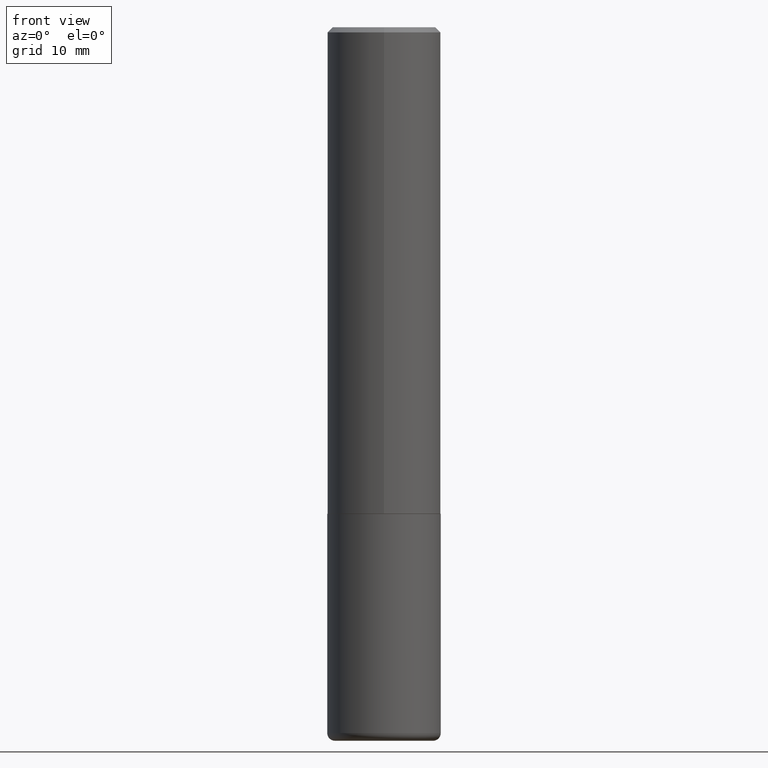
[diagram: clean part render]
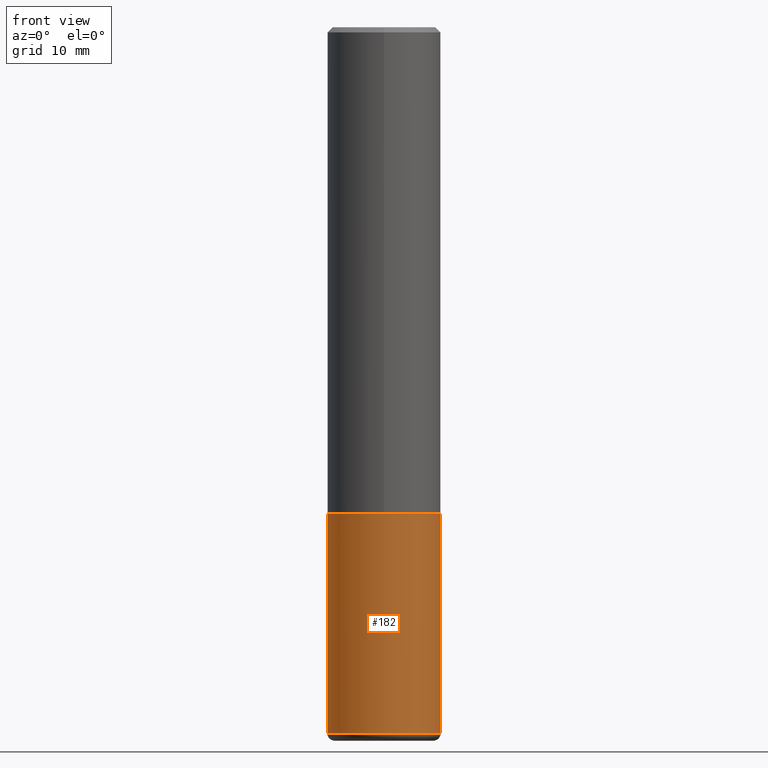
[diagram: same view with one face highlighted and labeled with its STEP entity id]
A machine part, front view. The second image highlights one B-rep face of the part: STEP entity #182.
In plain terms, the highlighted cylindrical surface (partial cylindrical patch) has radius 5.5563 mm, axis along (-0, 0, 1).
Its self-contained STEP definition (entity closure, byte-faithful):
#5 = EDGE_CURVE ( 'NONE', #14, #292, #167, .T. ) ;
#8 = EDGE_CURVE ( 'NONE', #292, #326, #172, .T. ) ;
#13 = FACE_OUTER_BOUND ( 'NONE', #35, .T. ) ;
#14 = VERTEX_POINT ( 'NONE', #371 ) ;
#16 = CARTESIAN_POINT ( 'NONE',  ( 0.000000000000000000, 0.000000000000000000, 0.000000000000000000 ) ) ;
#22 = DIRECTION ( 'NONE',  ( -2.445468806185136597E-29, 3.491481338843145583E-15, 1.000000000000000000 ) ) ;
#30 = AXIS2_PLACEMENT_3D ( 'NONE', #16, #320, #42 ) ;
#33 = CARTESIAN_POINT ( 'NONE',  ( 4.585254011597131119E-29, -6.546527510330898707E-15, -1.875000000000000000 ) ) ;
#35 = EDGE_LOOP ( 'NONE', ( #288, #365, #98, #108 ) ) ;
#38 = CARTESIAN_POINT ( 'NONE',  ( -0.2187500000000000000, -6.467366141516908442E-15, -1.875000000000000000 ) ) ;
#42 = DIRECTION ( 'NONE',  ( 1.000000000000000000, -6.982962677686266711E-15, 4.876176775795935232E-29 ) ) ;
#46 = CYLINDRICAL_SURFACE ( 'NONE', #30, 0.2187500000000000278 ) ;
#73 = CARTESIAN_POINT ( 'NONE',  ( 0.2187500000000000000, -8.074050596074770339E-15, -1.875000000000000000 ) ) ;
#85 = DIRECTION ( 'NONE',  ( 1.000000000000000000, -6.982962677686271444E-15, 0.000000000000000000 ) ) ;
#95 = AXIS2_PLACEMENT_3D ( 'NONE', #33, #327, #291 ) ;
#98 = ORIENTED_EDGE ( 'NONE', *, *, #8, .T. ) ;
#108 = ORIENTED_EDGE ( 'NONE', *, *, #330, .F. ) ;
#117 = CARTESIAN_POINT ( 'NONE',  ( 0.2187500000000000278, -1.527523085743871040E-15, 1.066663669705361025E-29 ) ) ;
#122 = AXIS2_PLACEMENT_3D ( 'NONE', #406, #22, #85 ) ;
#167 = CIRCLE ( 'NONE', #122, 0.2187500000000000278 ) ;
#171 = CARTESIAN_POINT ( 'NONE',  ( -0.2187500000000000278, 1.554312234475219354E-15, -1.076017050993260762E-29 ) ) ;
#172 = LINE ( 'NONE', #117, #201 ) ;
#182 = ADVANCED_FACE ( 'NONE', ( #13 ), #46, .T. ) ;
#197 = VERTEX_POINT ( 'NONE', #38 ) ;
#201 = VECTOR ( 'NONE', #239, 39.37007874015748143 ) ;
#208 = LINE ( 'NONE', #171, #305 ) ;
#228 = CARTESIAN_POINT ( 'NONE',  ( 0.2187499999999998890, -1.102435232739722812E-14, -2.719999999999999751 ) ) ;
#238 = DIRECTION ( 'NONE',  ( -2.445468806185136877E-29, 3.491481338843145188E-15, 1.000000000000000000 ) ) ;
#239 = DIRECTION ( 'NONE',  ( -2.445468806185136877E-29, 3.491481338843145188E-15, 1.000000000000000000 ) ) ;
#259 = EDGE_CURVE ( 'NONE', #14, #197, #208, .T. ) ;
#286 = CIRCLE ( 'NONE', #95, 0.2187500000000000000 ) ;
#288 = ORIENTED_EDGE ( 'NONE', *, *, #259, .F. ) ;
#291 = DIRECTION ( 'NONE',  ( 1.000000000000000000, -6.982962677686267499E-15, 0.000000000000000000 ) ) ;
#292 = VERTEX_POINT ( 'NONE', #228 ) ;
#305 = VECTOR ( 'NONE', #238, 39.37007874015748143 ) ;
#320 = DIRECTION ( 'NONE',  ( -2.445468806185136597E-29, 3.491481338843145583E-15, 1.000000000000000000 ) ) ;
#326 = VERTEX_POINT ( 'NONE', #73 ) ;
#327 = DIRECTION ( 'NONE',  ( -2.445468806185136597E-29, 3.491481338843145583E-15, 1.000000000000000000 ) ) ;
#330 = EDGE_CURVE ( 'NONE', #197, #326, #286, .T. ) ;
#365 = ORIENTED_EDGE ( 'NONE', *, *, #5, .T. ) ;
#371 = CARTESIAN_POINT ( 'NONE',  ( -0.2187499999999998890, -7.942517007178138911E-15, -2.719999999999999751 ) ) ;
#406 = CARTESIAN_POINT ( 'NONE',  ( 6.651675152823572126E-29, -9.496829241653356490E-15, -2.719999999999999751 ) ) ;